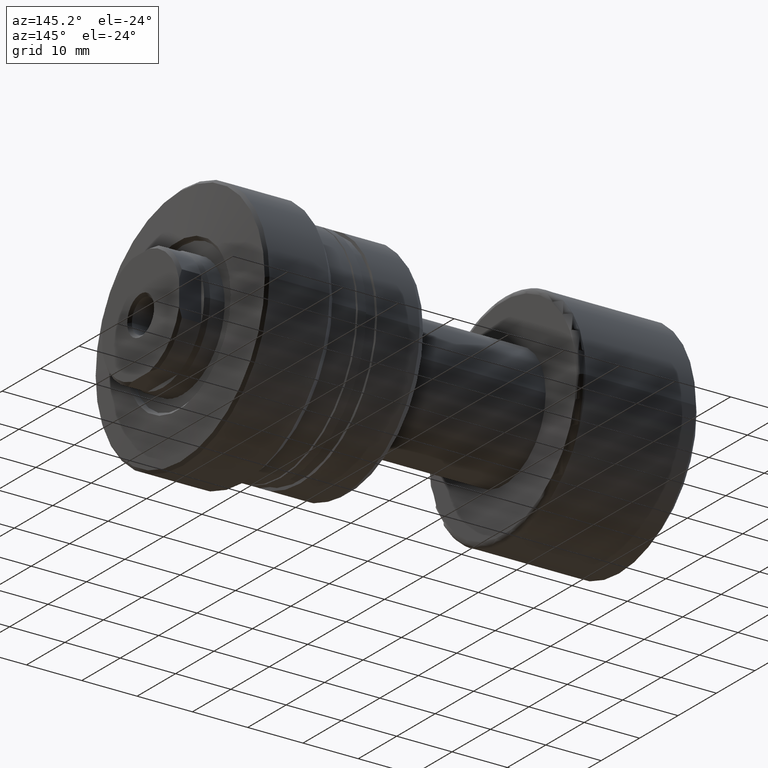
[diagram: clean part render]
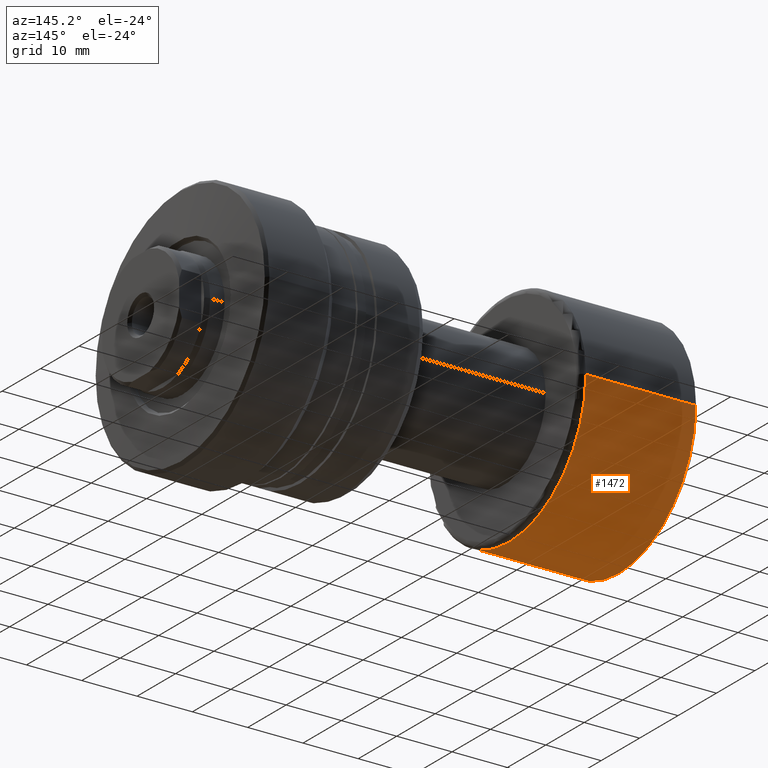
[diagram: same view with one face highlighted and labeled with its STEP entity id]
A machine part, auxiliary view. The second image highlights one B-rep face of the part: STEP entity #1472.
In plain terms, the highlighted cylindrical surface (partial cylindrical patch) has radius 20 mm, axis along (-1, -0, -0).
Its self-contained STEP definition (entity closure, byte-faithful):
#27 = CARTESIAN_POINT ( 'NONE',  ( 1.500000000000002442, 20.00000000000000000, 0.000000000000000000 ) ) ;
#145 = CARTESIAN_POINT ( 'NONE',  ( 21.40000000000000213, -20.00000000000000000, 0.000000000000000000 ) ) ;
#294 = CARTESIAN_POINT ( 'NONE',  ( 1.500000000000002442, 1.604313483103601552E-17, 0.000000000000000000 ) ) ;
#299 = DIRECTION ( 'NONE',  ( -1.000000000000000000, -1.069542322069065801E-17, -0.000000000000000000 ) ) ;
#335 = ORIENTED_EDGE ( 'NONE', *, *, #2259, .T. ) ;
#362 = DIRECTION ( 'NONE',  ( -1.000000000000000000, -1.069542322069065801E-17, -0.000000000000000000 ) ) ;
#475 = VECTOR ( 'NONE', #2224, 1000.000000000000000 ) ;
#491 = DIRECTION ( 'NONE',  ( 0.000000000000000000, -1.000000000000000000, 0.000000000000000000 ) ) ;
#532 = CARTESIAN_POINT ( 'NONE',  ( 2.139084644138131786E-16, -20.00000000000000000, 0.000000000000000000 ) ) ;
#604 = EDGE_CURVE ( 'NONE', #2432, #1644, #1391, .T. ) ;
#679 = EDGE_CURVE ( 'NONE', #1993, #1644, #1452, .T. ) ;
#740 = CYLINDRICAL_SURFACE ( 'NONE', #1928, 20.00000000000000000 ) ;
#749 = VERTEX_POINT ( 'NONE', #1806 ) ;
#769 = LINE ( 'NONE', #1105, #475 ) ;
#804 = AXIS2_PLACEMENT_3D ( 'NONE', #294, #1985, #1044 ) ;
#833 = CARTESIAN_POINT ( 'NONE',  ( 21.40000000000000213, 2.288820569227801297E-16, 0.000000000000000000 ) ) ;
#874 = CARTESIAN_POINT ( 'NONE',  ( 1.500000000000002887, -20.00000000000000000, 2.449293598294706513E-15 ) ) ;
#908 = FACE_OUTER_BOUND ( 'NONE', #1143, .T. ) ;
#1044 = DIRECTION ( 'NONE',  ( 1.084202172485504434E-17, -1.000000000000000000, 0.000000000000000000 ) ) ;
#1105 = CARTESIAN_POINT ( 'NONE',  ( -2.139084644138131786E-16, 20.00000000000000000, 2.449293598294706513E-15 ) ) ;
#1119 = DIRECTION ( 'NONE',  ( 1.069542322069065955E-17, -1.000000000000000000, 0.000000000000000000 ) ) ;
#1143 = EDGE_LOOP ( 'NONE', ( #2186, #335, #1787, #1524 ) ) ;
#1313 = AXIS2_PLACEMENT_3D ( 'NONE', #833, #299, #491 ) ;
#1391 = LINE ( 'NONE', #532, #2275 ) ;
#1393 = EDGE_CURVE ( 'NONE', #749, #1993, #769, .T. ) ;
#1432 = DIRECTION ( 'NONE',  ( -1.000000000000000000, -1.069542322069065801E-17, -0.000000000000000000 ) ) ;
#1452 = CIRCLE ( 'NONE', #804, 20.00000000000000000 ) ;
#1472 = ADVANCED_FACE ( 'NONE', ( #908 ), #740, .T. ) ;
#1524 = ORIENTED_EDGE ( 'NONE', *, *, #679, .F. ) ;
#1577 = CIRCLE ( 'NONE', #1313, 20.00000000000000000 ) ;
#1644 = VERTEX_POINT ( 'NONE', #874 ) ;
#1787 = ORIENTED_EDGE ( 'NONE', *, *, #604, .T. ) ;
#1806 = CARTESIAN_POINT ( 'NONE',  ( 21.40000000000000213, 20.00000000000000000, 2.449293598294706513E-15 ) ) ;
#1928 = AXIS2_PLACEMENT_3D ( 'NONE', #2036, #362, #1119 ) ;
#1985 = DIRECTION ( 'NONE',  ( -1.000000000000000000, -1.069542322069065801E-17, -0.000000000000000000 ) ) ;
#1993 = VERTEX_POINT ( 'NONE', #27 ) ;
#2036 = CARTESIAN_POINT ( 'NONE',  ( 0.000000000000000000, 0.000000000000000000, 0.000000000000000000 ) ) ;
#2186 = ORIENTED_EDGE ( 'NONE', *, *, #1393, .F. ) ;
#2224 = DIRECTION ( 'NONE',  ( -1.000000000000000000, -1.069542322069065801E-17, -0.000000000000000000 ) ) ;
#2259 = EDGE_CURVE ( 'NONE', #749, #2432, #1577, .T. ) ;
#2275 = VECTOR ( 'NONE', #1432, 1000.000000000000000 ) ;
#2432 = VERTEX_POINT ( 'NONE', #145 ) ;